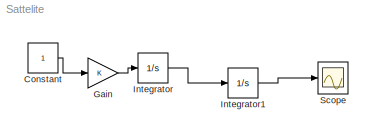
MODEL Sattelite
KIND model
BLOCK [Constant] Constant
  OutDataType = sfix(16)
  OutScaling = 2^0
BLOCK [Gain] Gain
  OutDataType = sfix(16)
  OutDataTypeMode = Inherit via internal rule
  OutDataTypeStr = Inherit: Inherit via internal rule
  OutScaling = 2^0
  ParamDataTypeStr = Inherit: Inherit via internal rule
  ParameterDataType = sfix(16)
  ParameterDataTypeMode = Inherit via internal rule
  ParameterScaling = 2^0
  SaturateOnIntegerOverflow = off
BLOCK [Integrator] Integrator
  Ports = [1, 1]
BLOCK [Integrator] Integrator1
  Ports = [1, 1]
BLOCK [Scope] Scope
  DataFormat = StructureWithTime
  Floating = off
  NumInputPorts = 1
  Ports = [1]
  SampleTime = 0
LINE Constant:1 -> Gain:1
LINE Gain:1 -> Integrator:1
LINE Integrator1:1 -> Scope:1
LINE Integrator:1 -> Integrator1:1
